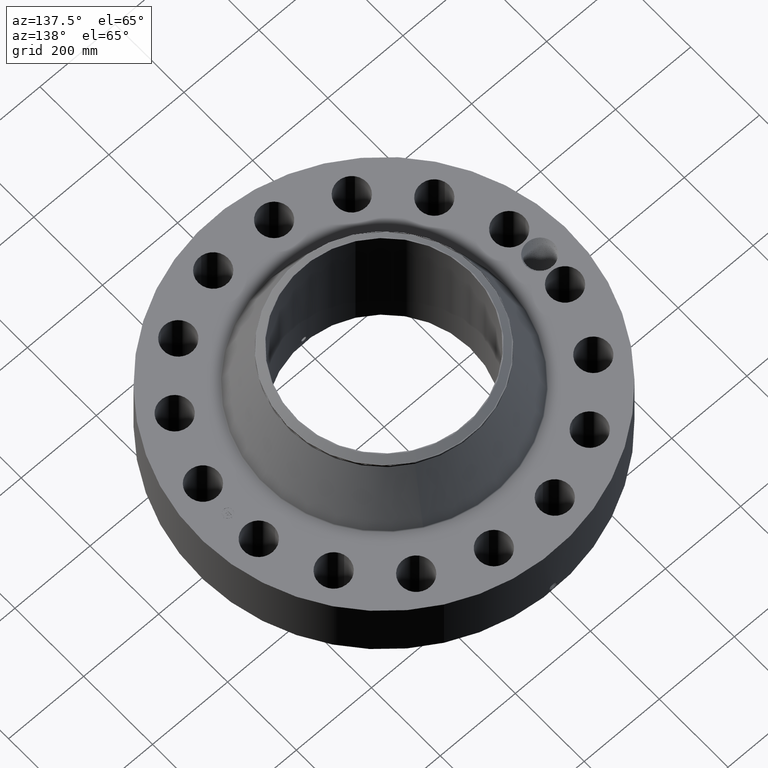
[diagram: clean part render]
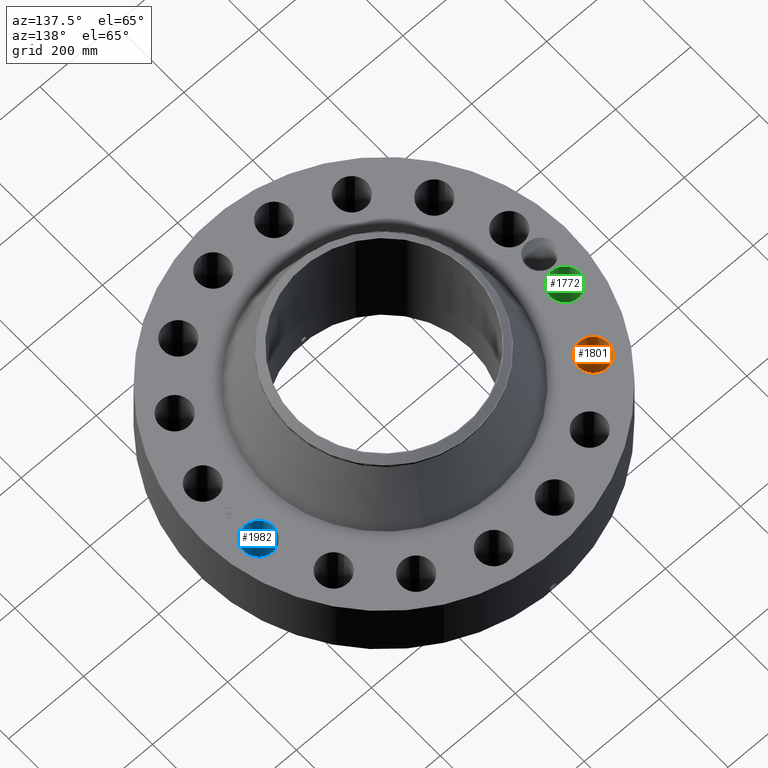
[diagram: same view with three faces highlighted in distinct colors, each labeled with its STEP entity id]
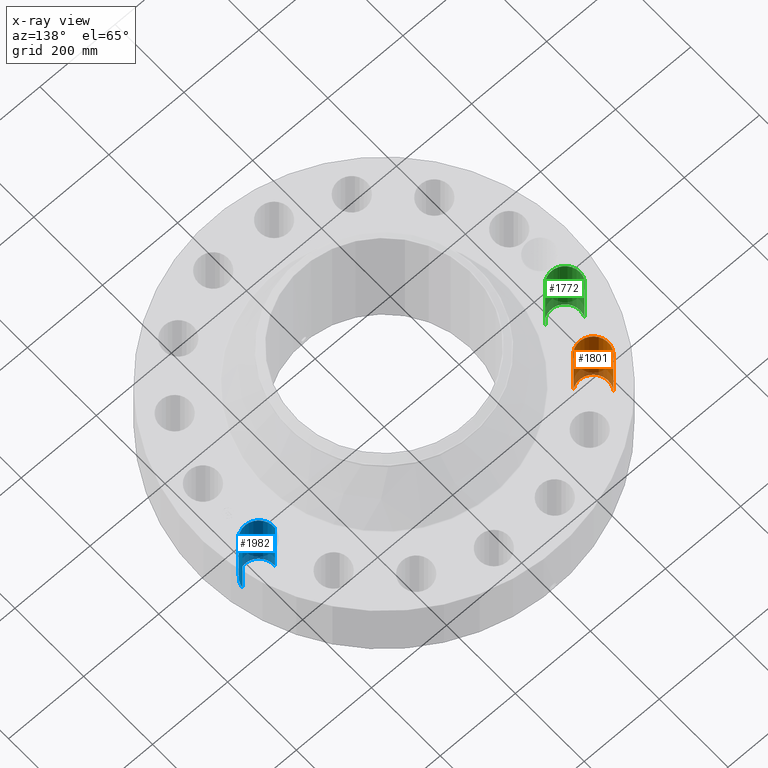
[diagram: x-ray of the same camera — body ghosted, the three highlighted faces saturated]
A machine part, auxiliary view with three faces highlighted in distinct colors.
The next image is the same camera in x-ray (body ghosted, the three faces saturated) — at least one of them is partly hidden behind the body in this view.
Their STEP definitions:

[orange] entity #1801 — the highlighted cylindrical surface (edge-blend (fillet) strip) has radius 39.624 mm, axis along (0, 0, -1).
#422=AXIS2_PLACEMENT_3D('Circle Axis2P3D',#420,#421,$) ;
#910=AXIS2_PLACEMENT_3D('Circle Axis2P3D',#908,#909,$) ;
#1783=AXIS2_PLACEMENT_3D('Cylinder Axis2P3D',#1780,#1781,#1782) ;
#420=CARTESIAN_POINT('Axis2P3D Location',(-13.6153149015,9.09746256573,0.250000000001)) ;
#424=CARTESIAN_POINT('Vertex',(-12.6367076256,7.88258487659,0.250000000001)) ;
#426=CARTESIAN_POINT('Vertex',(-14.5939221774,10.3123402549,0.250000000001)) ;
#903=CARTESIAN_POINT('Vertex',(-14.5939221774,10.3123402549,7.25000000003)) ;
#905=CARTESIAN_POINT('Vertex',(-12.6367076256,7.88258487659,7.25000000003)) ;
#908=CARTESIAN_POINT('Axis2P3D Location',(-13.6153149015,9.09746256573,7.25000000003)) ;
#1780=CARTESIAN_POINT('Axis2P3D Location',(-13.6153149015,9.09746256573,7.24606299215)) ;
#1785=CARTESIAN_POINT('Line Origine',(-12.6367076256,7.88258487659,3.75000000002)) ;
#1790=CARTESIAN_POINT('Line Origine',(-14.5939221774,10.3123402549,3.75000000002)) ;
#421=DIRECTION('Axis2P3D Direction',(0.,0.,-0.0393700787402)) ;
#909=DIRECTION('Axis2P3D Direction',(0.,0.,-0.0393700787402)) ;
#1781=DIRECTION('Axis2P3D Direction',(0.,0.,-0.0393700787402)) ;
#1782=DIRECTION('Axis2P3D XDirection',(-0.0246973368639,0.030660147616,0.)) ;
#1786=DIRECTION('Vector Direction',(0.,0.,-0.0393700787402)) ;
#1791=DIRECTION('Vector Direction',(0.,0.,-0.0393700787402)) ;
#1787=VECTOR('Line Direction',#1786,0.0393700787402) ;
#1792=VECTOR('Line Direction',#1791,0.0393700787402) ;
#1796=ORIENTED_EDGE('',*,*,#1789,.F.) ;
#1797=ORIENTED_EDGE('',*,*,#428,.T.) ;
#1798=ORIENTED_EDGE('',*,*,#1794,.T.) ;
#1799=ORIENTED_EDGE('',*,*,#912,.F.) ;
#1801=ADVANCED_FACE('PartBody',(#1800),#1784,.F.) ;
#423=CIRCLE('generated circle',#422,1.56000000001) ;
#911=CIRCLE('generated circle',#910,1.56000000001) ;
#1784=CYLINDRICAL_SURFACE('generated cylinder',#1783,1.56000000001) ;
#428=EDGE_CURVE('',#425,#427,#423,.T.) ;
#912=EDGE_CURVE('',#906,#904,#911,.T.) ;
#1789=EDGE_CURVE('',#425,#906,#1788,.F.) ;
#1794=EDGE_CURVE('',#427,#904,#1793,.F.) ;
#1795=EDGE_LOOP('',(#1796,#1797,#1798,#1799)) ;
#1800=FACE_OUTER_BOUND('',#1795,.T.) ;
#1788=LINE('Line',#1785,#1787) ;
#1793=LINE('Line',#1790,#1792) ;
#425=VERTEX_POINT('',#424) ;
#427=VERTEX_POINT('',#426) ;
#904=VERTEX_POINT('',#903) ;
#906=VERTEX_POINT('',#905) ;

[blue] entity #1982 — the highlighted cylindrical surface (edge-blend (fillet) strip) has radius 39.624 mm, axis along (0, 0, -1).
#539=AXIS2_PLACEMENT_3D('Circle Axis2P3D',#537,#538,$) ;
#1009=AXIS2_PLACEMENT_3D('Circle Axis2P3D',#1007,#1008,$) ;
#1957=AXIS2_PLACEMENT_3D('Cylinder Axis2P3D',#1954,#1955,#1956) ;
#532=CARTESIAN_POINT('Vertex',(14.5093308735,3.36167243443,0.250000000001)) ;
#534=CARTESIAN_POINT('Vertex',(17.6113870599,3.02753561163,0.250000000001)) ;
#537=CARTESIAN_POINT('Axis2P3D Location',(16.0603589667,3.19460402303,0.250000000001)) ;
#1007=CARTESIAN_POINT('Axis2P3D Location',(16.0603589667,3.19460402303,7.25000000003)) ;
#1011=CARTESIAN_POINT('Vertex',(17.6113870599,3.02753561163,7.25000000003)) ;
#1013=CARTESIAN_POINT('Vertex',(14.5093308735,3.36167243443,7.25000000003)) ;
#1954=CARTESIAN_POINT('Axis2P3D Location',(16.0603589667,3.19460402303,7.24606299215)) ;
#1959=CARTESIAN_POINT('Line Origine',(14.5093308735,3.36167243443,3.75000000002)) ;
#1964=CARTESIAN_POINT('Line Origine',(17.6113870599,3.02753561163,3.75000000002)) ;
#538=DIRECTION('Axis2P3D Direction',(0.,0.,-0.0393700787402)) ;
#1008=DIRECTION('Axis2P3D Direction',(0.,0.,-0.0393700787402)) ;
#1955=DIRECTION('Axis2P3D Direction',(0.,0.,-0.0393700787402)) ;
#1956=DIRECTION('Axis2P3D XDirection',(0.0391436526652,-0.00421634391778,0.)) ;
#1960=DIRECTION('Vector Direction',(0.,0.,-0.0393700787402)) ;
#1965=DIRECTION('Vector Direction',(0.,0.,-0.0393700787402)) ;
#1961=VECTOR('Line Direction',#1960,0.0393700787402) ;
#1966=VECTOR('Line Direction',#1965,0.0393700787402) ;
#1977=ORIENTED_EDGE('',*,*,#1968,.F.) ;
#1978=ORIENTED_EDGE('',*,*,#541,.T.) ;
#1979=ORIENTED_EDGE('',*,*,#1963,.T.) ;
#1980=ORIENTED_EDGE('',*,*,#1015,.F.) ;
#1982=ADVANCED_FACE('PartBody',(#1981),#1958,.F.) ;
#540=CIRCLE('generated circle',#539,1.56000000001) ;
#1010=CIRCLE('generated circle',#1009,1.56000000001) ;
#1958=CYLINDRICAL_SURFACE('generated cylinder',#1957,1.56000000001) ;
#541=EDGE_CURVE('',#535,#533,#540,.T.) ;
#1015=EDGE_CURVE('',#1012,#1014,#1010,.T.) ;
#1963=EDGE_CURVE('',#533,#1014,#1962,.F.) ;
#1968=EDGE_CURVE('',#535,#1012,#1967,.F.) ;
#1976=EDGE_LOOP('',(#1977,#1978,#1979,#1980)) ;
#1981=FACE_OUTER_BOUND('',#1976,.T.) ;
#1962=LINE('Line',#1959,#1961) ;
#1967=LINE('Line',#1964,#1966) ;
#533=VERTEX_POINT('',#532) ;
#535=VERTEX_POINT('',#534) ;
#1012=VERTEX_POINT('',#1011) ;
#1014=VERTEX_POINT('',#1013) ;

[green] entity #1772 — the highlighted cylindrical surface (edge-blend (fillet) strip) has radius 39.624 mm, axis along (-0, 0, -1).
#404=AXIS2_PLACEMENT_3D('Circle Axis2P3D',#402,#403,$) ;
#892=AXIS2_PLACEMENT_3D('Circle Axis2P3D',#890,#891,$) ;
#1754=AXIS2_PLACEMENT_3D('Cylinder Axis2P3D',#1751,#1752,#1753) ;
#402=CARTESIAN_POINT('Axis2P3D Location',(-16.0603589667,3.19460402303,0.250000000001)) ;
#406=CARTESIAN_POINT('Vertex',(-14.6913301701,2.4467001828,0.250000000001)) ;
#408=CARTESIAN_POINT('Vertex',(-17.4293877632,3.94250786325,0.250000000001)) ;
#885=CARTESIAN_POINT('Vertex',(-17.4293877632,3.94250786325,7.25000000003)) ;
#887=CARTESIAN_POINT('Vertex',(-14.6913301701,2.4467001828,7.25000000003)) ;
#890=CARTESIAN_POINT('Axis2P3D Location',(-16.0603589667,3.19460402303,7.25000000003)) ;
#1751=CARTESIAN_POINT('Axis2P3D Location',(-16.0603589667,3.19460402303,7.24606299215)) ;
#1756=CARTESIAN_POINT('Line Origine',(-14.6913301701,2.4467001828,3.75000000002)) ;
#1761=CARTESIAN_POINT('Line Origine',(-17.4293877632,3.94250786325,3.75000000002)) ;
#403=DIRECTION('Axis2P3D Direction',(0.,0.,-0.0393700787402)) ;
#891=DIRECTION('Axis2P3D Direction',(0.,0.,-0.0393700787402)) ;
#1752=DIRECTION('Axis2P3D Direction',(-0.,0.,-0.0393700787402)) ;
#1753=DIRECTION('Axis2P3D XDirection',(-0.0345504945626,0.0188750212049,0.)) ;
#1757=DIRECTION('Vector Direction',(0.,0.,-0.0393700787402)) ;
#1762=DIRECTION('Vector Direction',(0.,0.,-0.0393700787402)) ;
#1758=VECTOR('Line Direction',#1757,0.0393700787402) ;
#1763=VECTOR('Line Direction',#1762,0.0393700787402) ;
#1767=ORIENTED_EDGE('',*,*,#1760,.F.) ;
#1768=ORIENTED_EDGE('',*,*,#410,.T.) ;
#1769=ORIENTED_EDGE('',*,*,#1765,.T.) ;
#1770=ORIENTED_EDGE('',*,*,#894,.F.) ;
#1772=ADVANCED_FACE('PartBody',(#1771),#1755,.F.) ;
#405=CIRCLE('generated circle',#404,1.56000000001) ;
#893=CIRCLE('generated circle',#892,1.56000000001) ;
#1755=CYLINDRICAL_SURFACE('generated cylinder',#1754,1.56000000001) ;
#410=EDGE_CURVE('',#407,#409,#405,.T.) ;
#894=EDGE_CURVE('',#888,#886,#893,.T.) ;
#1760=EDGE_CURVE('',#407,#888,#1759,.F.) ;
#1765=EDGE_CURVE('',#409,#886,#1764,.F.) ;
#1766=EDGE_LOOP('',(#1767,#1768,#1769,#1770)) ;
#1771=FACE_OUTER_BOUND('',#1766,.T.) ;
#1759=LINE('Line',#1756,#1758) ;
#1764=LINE('Line',#1761,#1763) ;
#407=VERTEX_POINT('',#406) ;
#409=VERTEX_POINT('',#408) ;
#886=VERTEX_POINT('',#885) ;
#888=VERTEX_POINT('',#887) ;